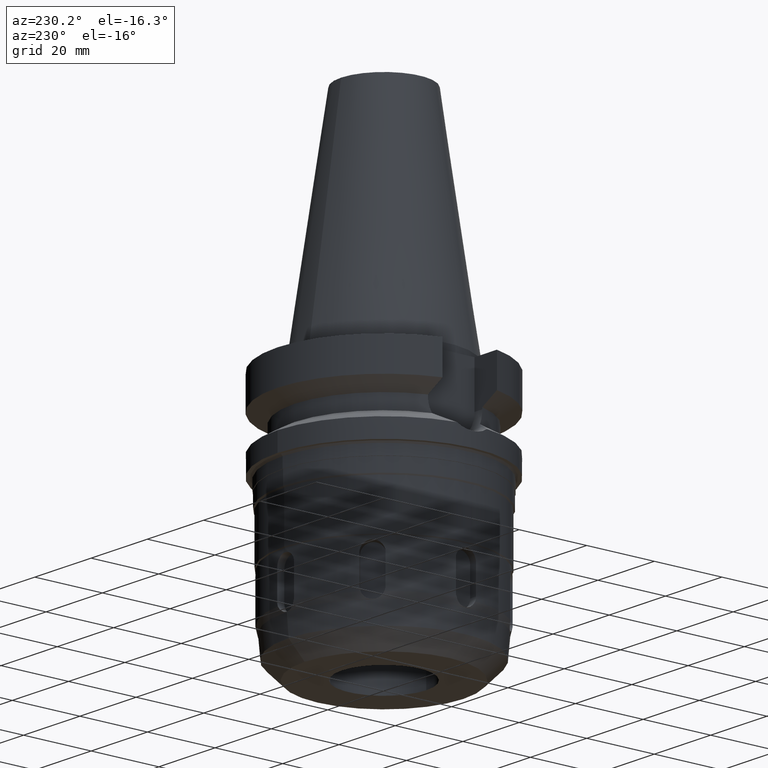
[diagram: clean part render]
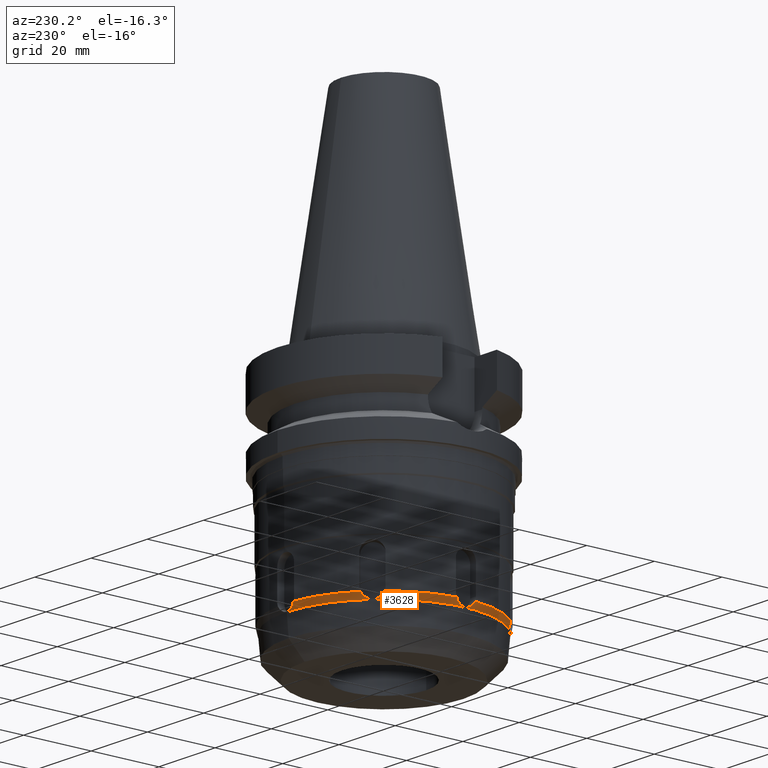
[diagram: same view with one face highlighted and labeled with its STEP entity id]
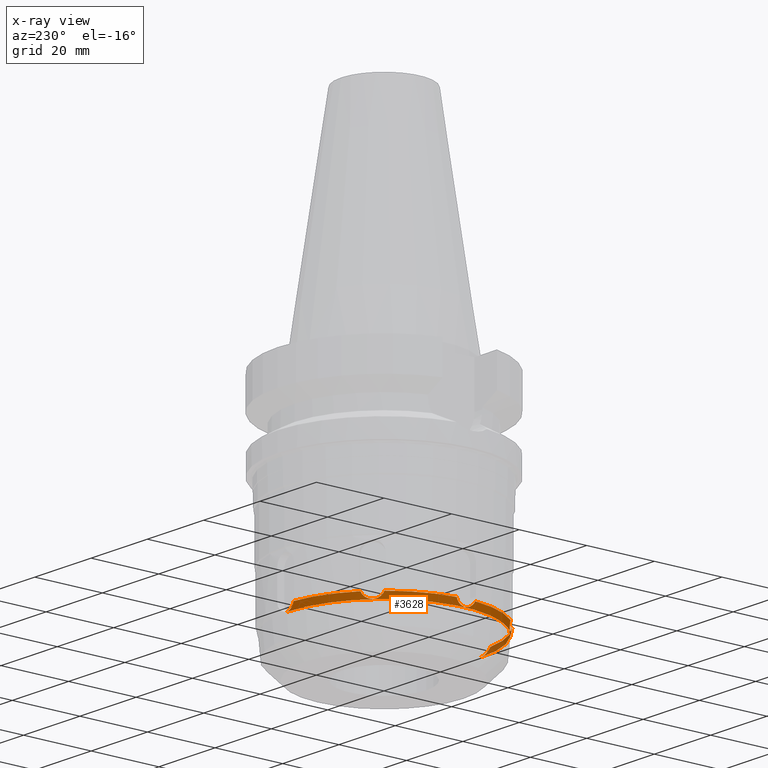
[diagram: x-ray of the same camera — body ghosted, the highlighted face saturated]
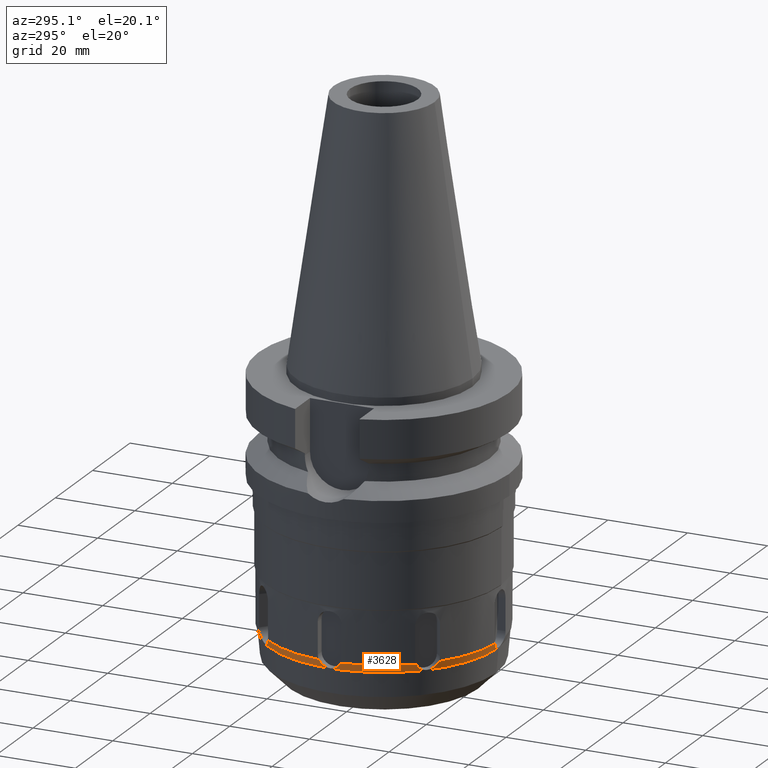
[diagram: same view with one face highlighted and labeled with its STEP entity id]
A machine part, auxiliary view. The second image highlights one B-rep face of the part: STEP entity #3628.
The next image is the same camera in x-ray: the body ghosted, the highlighted face saturated — about 6% of this face is hidden behind the body in this view.
A second angle (auxiliary view) of the same face is appended — the face is thin or edge-on in the first view.
In plain terms, the highlighted conical surface has half-angle 15 deg.
Its self-contained STEP definition (entity closure, byte-faithful):
#1131=CARTESIAN_POINT('',(-1.864707145924E1,2.253551079542E1,
-6.229999852752E1));
#1132=CARTESIAN_POINT('',(-1.868252381231E1,2.242254546317E1,
-6.254046371474E1));
#1133=CARTESIAN_POINT('',(-1.880668188446E1,2.216210847683E1,
-6.299034809644E1));
#1134=CARTESIAN_POINT('',(-1.912768284351E1,2.169465882894E1,
-6.352919375184E1));
#1135=CARTESIAN_POINT('',(-1.955392454459E1,2.117426636128E1,
-6.390867471082E1));
#1136=CARTESIAN_POINT('',(-2.006962940264E1,2.061173519862E1,
-6.410978856795E1));
#1137=CARTESIAN_POINT('',(-2.062436704800E1,2.005753788398E1,
-6.410741015699E1));
#1138=CARTESIAN_POINT('',(-2.118510926025E1,1.954454870142E1,
-6.390253794276E1));
#1139=CARTESIAN_POINT('',(-2.170237809942E1,1.912193287547E1,
-6.352162806040E1));
#1140=CARTESIAN_POINT('',(-2.216587879148E1,1.880468212435E1,
-6.298434849918E1));
#1141=CARTESIAN_POINT('',(-2.242363336429E1,1.868214996380E1,
-6.253820945622E1));
#1142=CARTESIAN_POINT('',(-2.253558333099E1,1.864704476996E1,
-6.229983782590E1));
#1147=CARTESIAN_POINT('',(0.E0,0.E0,-6.23E1));
#1148=DIRECTION('',(0.E0,0.E0,1.E0));
#1149=DIRECTION('',(-7.704446081762E-1,6.375069456345E-1,0.E0));
#1150=AXIS2_PLACEMENT_3D('',#1147,#1148,#1149);
#1155=CARTESIAN_POINT('',(-2.912048317714E1,2.749541832679E0,
-6.229999853154E1));
#1156=CARTESIAN_POINT('',(-2.906568363710E1,2.644614618028E0,
-6.254041803408E1));
#1157=CARTESIAN_POINT('',(-2.896932013280E1,2.372727455643E0,
-6.299028752512E1));
#1158=CARTESIAN_POINT('',(-2.886570698866E1,1.814827353686E0,
-6.352944900381E1));
#1159=CARTESIAN_POINT('',(-2.879917127036E1,1.145506039535E0,
-6.390873194800E1));
#1160=CARTESIAN_POINT('',(-2.876608500499E1,3.836762585120E-1,
-6.410968819014E1));
#1161=CARTESIAN_POINT('',(-2.876643883947E1,-3.998538274782E-1,
-6.410748577113E1));
#1162=CARTESIAN_POINT('',(-2.880012832102E1,-1.158709075537E0,
-6.390307020500E1));
#1163=CARTESIAN_POINT('',(-2.886699655454E1,-1.823656371569E0,
-6.352244129331E1));
#1164=CARTESIAN_POINT('',(-2.897047565238E1,-2.376483290483E0,
-6.298475292041E1));
#1165=CARTESIAN_POINT('',(-2.906614623478E1,-2.645567244148E0,
-6.253834939273E1));
#1166=CARTESIAN_POINT('',(-2.912051559683E1,-2.749611990748E0,
-6.229983781364E1));
#1171=CARTESIAN_POINT('',(0.E0,0.E0,-6.23E1));
#1172=DIRECTION('',(0.E0,0.E0,1.E0));
#1173=DIRECTION('',(-9.955720912817E-1,-9.400112265827E-2,0.E0));
#1174=AXIS2_PLACEMENT_3D('',#1171,#1172,#1173);
#1179=CARTESIAN_POINT('',(-2.253551080101E1,-1.864707145096E1,
-6.229999853160E1));
#1180=CARTESIAN_POINT('',(-2.242258724839E1,-1.868251069290E1,
-6.254037478231E1));
#1181=CARTESIAN_POINT('',(-2.216225583417E1,-1.880660249011E1,
-6.299011678881E1));
#1182=CARTESIAN_POINT('',(-2.169495803977E1,-1.912746154548E1,
-6.352889534481E1));
#1183=CARTESIAN_POINT('',(-2.117475661826E1,-1.955350098369E1,
-6.390839552888E1));
#1184=CARTESIAN_POINT('',(-2.061229409457E1,-2.006909343811E1,
-6.410968742086E1));
#1185=CARTESIAN_POINT('',(-2.005809208E1,-2.062378941550E1,-6.410751364384E1));
#1186=CARTESIAN_POINT('',(-1.954502752834E1,-2.118455532240E1,
-6.390285221647E1));
#1187=CARTESIAN_POINT('',(-1.912219954549E1,-2.170201829639E1,
-6.352198518712E1));
#1188=CARTESIAN_POINT('',(-1.880478859099E1,-2.216568316286E1,
-6.298465263695E1));
#1189=CARTESIAN_POINT('',(-1.868216782863E1,-2.242357635274E1,
-6.253833087238E1));
#1190=CARTESIAN_POINT('',(-1.864704475387E1,-2.253558334232E1,
-6.229983782433E1));
#1195=CARTESIAN_POINT('',(0.E0,0.E0,-6.23E1));
#1196=DIRECTION('',(0.E0,0.E0,1.E0));
#1197=DIRECTION('',(-6.375069441495E-1,-7.704446094049E-1,0.E0));
#1198=AXIS2_PLACEMENT_3D('',#1195,#1196,#1197);
#1203=CARTESIAN_POINT('',(-2.749541815617E0,-2.912048317960E1,
-6.229999854484E1));
#1204=CARTESIAN_POINT('',(-2.655699885637E0,-2.907147306935E1,
-6.251501834980E1));
#1205=CARTESIAN_POINT('',(-2.417649345896E0,-2.898384011279E1,
-6.292116804506E1));
#1206=CARTESIAN_POINT('',(-1.938941438872E0,-2.888535158523E1,
-6.342433389756E1));
#1207=CARTESIAN_POINT('',(-1.349468002136E0,-2.881612620212E1,
-6.380984279450E1));
#1208=CARTESIAN_POINT('',(-6.915864722536E-1,-2.877634425082E1,
-6.404668892116E1));
#1209=CARTESIAN_POINT('',(-2.301760655156E-1,-2.876769145362E1,-6.41E1));
#1210=CARTESIAN_POINT('',(-1.938257923964E-14,-2.876769145362E1,-6.41E1));
#1215=DIRECTION('',(4.659525668351E-14,2.588190450751E-1,-9.659258262964E-1));
#1216=VECTOR('',#1215,6.639877850084E-2);
#1217=CARTESIAN_POINT('',(-1.938257923964E-14,-2.876769145362E1,-6.41E1));
#1218=LINE('',#1217,#1216);
#1222=CARTESIAN_POINT('',(0.E0,0.E0,-6.416413629499E1));
#1223=DIRECTION('',(0.E0,0.E0,-1.E0));
#1224=DIRECTION('',(0.E0,-1.E0,0.E0));
#1225=AXIS2_PLACEMENT_3D('',#1222,#1223,#1224);
#1230=CARTESIAN_POINT('',(0.E0,2.876769145362E1,-6.41E1));
#1231=CARTESIAN_POINT('',(-2.333851911494E-1,2.876769145362E1,-6.41E1));
#1232=CARTESIAN_POINT('',(-6.992806588343E-1,2.877659867640E1,
-6.404512143648E1));
#1233=CARTESIAN_POINT('',(-1.356372579340E0,2.881675521707E1,
-6.380620764729E1));
#1234=CARTESIAN_POINT('',(-1.942368237608E0,2.888597253669E1,
-6.342107854746E1));
#1235=CARTESIAN_POINT('',(-2.417941680869E0,2.898402169845E1,
-6.292037881543E1));
#1236=CARTESIAN_POINT('',(-2.655736699835E0,2.907146112386E1,
-6.251503589321E1));
#1237=CARTESIAN_POINT('',(-2.749611232576E0,2.912051565725E1,
-6.229983959531E1));
#1242=CARTESIAN_POINT('',(0.E0,0.E0,-6.23E1));
#1243=DIRECTION('',(0.E0,0.E0,1.E0));
#1244=DIRECTION('',(-9.400112461077E-2,9.955720910973E-1,0.E0));
#1245=AXIS2_PLACEMENT_3D('',#1242,#1243,#1244);
#1412=CARTESIAN_POINT('',(-1.938257923964E-14,-2.876769145362E1,-6.41E1));
#1511=CARTESIAN_POINT('',(0.E0,2.876769145362E1,-6.41E1));
#1516=DIRECTION('',(1.765450329035E-14,-2.588190450751E-1,-9.659258262964E-1));
#1517=VECTOR('',#1516,6.639877850086E-2);
#1518=CARTESIAN_POINT('',(0.E0,2.876769145362E1,-6.41E1));
#1519=LINE('',#1518,#1517);
#2560=CARTESIAN_POINT('',(0.E0,2.875050618518E1,-6.416413629499E1));
#2561=VERTEX_POINT('',#2560);
#2562=CARTESIAN_POINT('',(-2.905650068649E-14,-2.875050618518E1,
-6.416413629499E1));
#2563=VERTEX_POINT('',#2562);
#2564=VERTEX_POINT('',#1412);
#2577=VERTEX_POINT('',#1511);
#2578=VERTEX_POINT('',#1203);
#2588=VERTEX_POINT('',#1131);
#2589=VERTEX_POINT('',#1142);
#2590=CARTESIAN_POINT('',(-2.912048367909E1,2.749532741436E0,-6.23E1));
#2591=VERTEX_POINT('',#2590);
#2592=VERTEX_POINT('',#1166);
#2593=CARTESIAN_POINT('',(-2.253550472748E1,-1.864707823435E1,-6.23E1));
#2594=VERTEX_POINT('',#2593);
#2595=VERTEX_POINT('',#1190);
#2596=VERTEX_POINT('',#1237);
#3602=CARTESIAN_POINT('',(0.E0,0.E0,-6.323206814750E1));
#3603=DIRECTION('',(0.E0,0.E0,1.E0));
#3604=DIRECTION('',(0.E0,1.E0,0.E0));
#3605=AXIS2_PLACEMENT_3D('',#3602,#3603,#3604);
#3606=CONICAL_SURFACE('',#3605,2.900025309259E1,1.5E1);
#3607=ORIENTED_EDGE('',*,*,#3588,.T.);
#3608=ORIENTED_EDGE('',*,*,#3542,.T.);
#3610=ORIENTED_EDGE('',*,*,#3609,.T.);
#3611=ORIENTED_EDGE('',*,*,#3528,.T.);
#3613=ORIENTED_EDGE('',*,*,#3612,.T.);
#3614=ORIENTED_EDGE('',*,*,#3514,.T.);
#3616=ORIENTED_EDGE('',*,*,#3615,.T.);
#3618=ORIENTED_EDGE('',*,*,#3617,.T.);
#3620=ORIENTED_EDGE('',*,*,#3619,.T.);
#3622=ORIENTED_EDGE('',*,*,#3621,.F.);
#3624=ORIENTED_EDGE('',*,*,#3623,.T.);
#3625=ORIENTED_EDGE('',*,*,#3495,.T.);
#3626=EDGE_LOOP('',(#3607,#3608,#3610,#3611,#3613,#3614,#3616,#3618,#3620,#3622,
#3624,#3625));
#3627=FACE_OUTER_BOUND('',#3626,.F.);
#1143=B_SPLINE_CURVE_WITH_KNOTS('',3,(#1131,#1132,#1133,#1134,#1135,#1136,#1137,
#1138,#1139,#1140,#1141,#1142),.UNSPECIFIED.,.F.,.F.,(4,1,1,1,1,1,1,1,1,4),
(0.E0,1.111111111111E-1,2.222222222222E-1,3.333333333333E-1,4.444444444444E-1,
5.555555555556E-1,6.666666666667E-1,7.777777777778E-1,8.888888888889E-1,1.E0),
.UNSPECIFIED.);
#1151=CIRCLE('',#1150,2.925E1);
#1167=B_SPLINE_CURVE_WITH_KNOTS('',3,(#1155,#1156,#1157,#1158,#1159,#1160,#1161,
#1162,#1163,#1164,#1165,#1166),.UNSPECIFIED.,.F.,.F.,(4,1,1,1,1,1,1,1,1,4),
(0.E0,1.111111111111E-1,2.222222222222E-1,3.333333333333E-1,4.444444444444E-1,
5.555555555556E-1,6.666666666667E-1,7.777777777778E-1,8.888888888889E-1,1.E0),
.UNSPECIFIED.);
#1175=CIRCLE('',#1174,2.925E1);
#1191=B_SPLINE_CURVE_WITH_KNOTS('',3,(#1179,#1180,#1181,#1182,#1183,#1184,#1185,
#1186,#1187,#1188,#1189,#1190),.UNSPECIFIED.,.F.,.F.,(4,1,1,1,1,1,1,1,1,4),
(0.E0,1.111111111111E-1,2.222222222222E-1,3.333333333333E-1,4.444444444444E-1,
5.555555555556E-1,6.666666666667E-1,7.777777777778E-1,8.888888888889E-1,1.E0),
.UNSPECIFIED.);
#1199=CIRCLE('',#1198,2.925E1);
#1211=B_SPLINE_CURVE_WITH_KNOTS('',3,(#1203,#1204,#1205,#1206,#1207,#1208,#1209,
#1210),.UNSPECIFIED.,.F.,.F.,(4,1,1,1,1,4),(0.E0,2.E-1,4.E-1,6.E-1,8.E-1,1.E0),
.UNSPECIFIED.);
#1226=CIRCLE('',#1225,2.875050618518E1);
#1238=B_SPLINE_CURVE_WITH_KNOTS('',3,(#1230,#1231,#1232,#1233,#1234,#1235,#1236,
#1237),.UNSPECIFIED.,.F.,.F.,(4,1,1,1,1,4),(0.E0,2.E-1,4.E-1,6.E-1,8.E-1,1.E0),
.UNSPECIFIED.);
#1246=CIRCLE('',#1245,2.925E1);
#3495=EDGE_CURVE('',#2596,#2588,#1246,.T.);
#3514=EDGE_CURVE('',#2595,#2578,#1199,.T.);
#3528=EDGE_CURVE('',#2592,#2594,#1175,.T.);
#3542=EDGE_CURVE('',#2589,#2591,#1151,.T.);
#3588=EDGE_CURVE('',#2588,#2589,#1143,.T.);
#3609=EDGE_CURVE('',#2591,#2592,#1167,.T.);
#3612=EDGE_CURVE('',#2594,#2595,#1191,.T.);
#3615=EDGE_CURVE('',#2578,#2564,#1211,.T.);
#3617=EDGE_CURVE('',#2564,#2563,#1218,.T.);
#3619=EDGE_CURVE('',#2563,#2561,#1226,.T.);
#3621=EDGE_CURVE('',#2577,#2561,#1519,.T.);
#3623=EDGE_CURVE('',#2577,#2596,#1238,.T.);
#3628=ADVANCED_FACE('',(#3627),#3606,.T.);